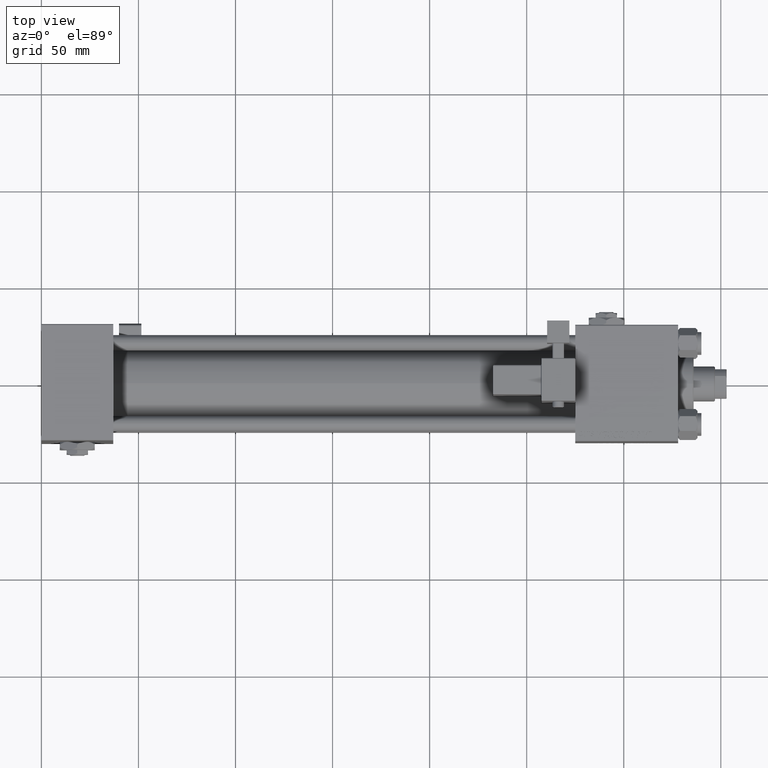
[diagram: clean part render]
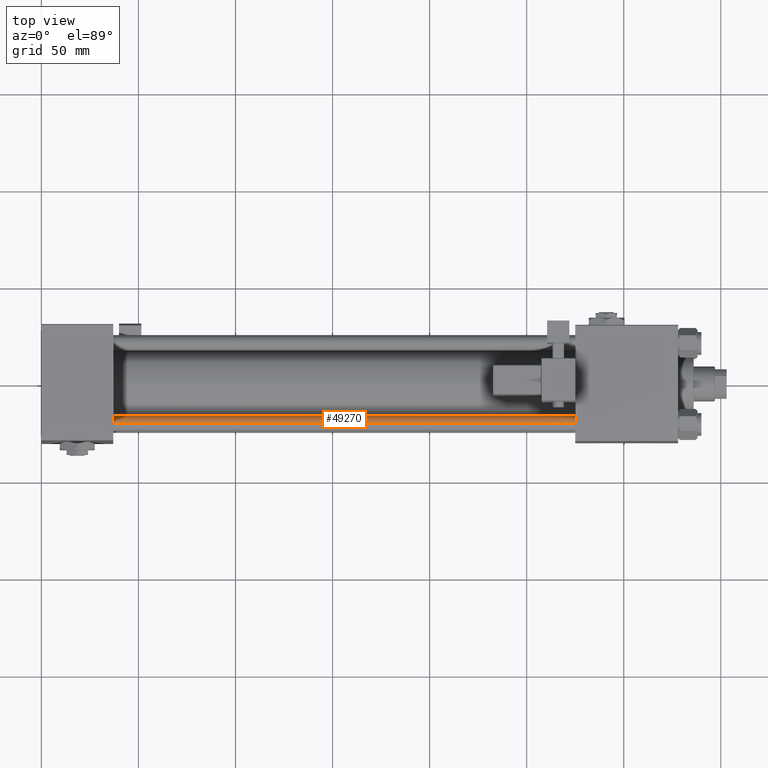
[diagram: same view with one face highlighted and labeled with its STEP entity id]
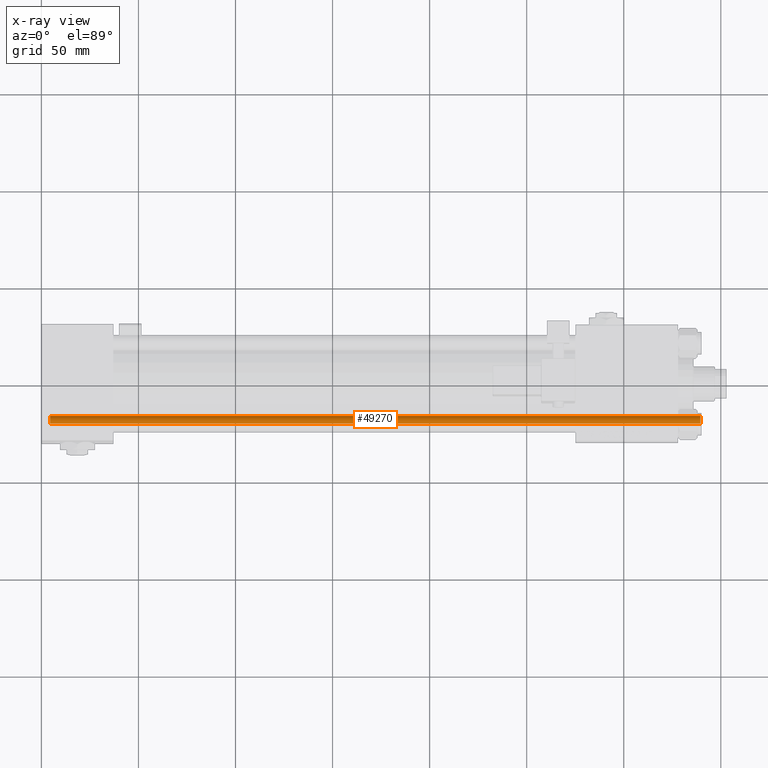
[diagram: x-ray of the same camera — body ghosted, the highlighted face saturated]
A machine part, top view. The second image highlights one B-rep face of the part: STEP entity #49270.
The next image is the same camera in x-ray: the body ghosted, the highlighted face saturated — about 0% of this face is hidden behind the body in this view.
In plain terms, the highlighted cylindrical surface (edge-blend (fillet) strip) has radius 4 mm, axis along (-1, 0, -0).
Its self-contained STEP definition (entity closure, byte-faithful):
#2832 = DIRECTION ( 'NONE',  ( 1.000000000000000000, 0.000000000000000000, 0.000000000000000000 ) ) ;
#4340 = EDGE_CURVE ( 'NONE', #36405, #35872, #12436, .T. ) ;
#4458 = CARTESIAN_POINT ( 'NONE',  ( 4.000000000000000000, 4.898587196589411843E-16, 0.5000000000003335110 ) ) ;
#4763 = DIRECTION ( 'NONE',  ( -0.000000000000000000, -0.000000000000000000, -1.000000000000000000 ) ) ;
#5082 = LINE ( 'NONE', #25329, #27484 ) ;
#7731 = CARTESIAN_POINT ( 'NONE',  ( 0.000000000000000000, 0.000000000000000000, 335.5000000000001705 ) ) ;
#8058 = EDGE_CURVE ( 'NONE', #18956, #29649, #5082, .T. ) ;
#8741 = AXIS2_PLACEMENT_3D ( 'NONE', #39191, #42994, #34573 ) ;
#9114 = CARTESIAN_POINT ( 'NONE',  ( -4.000000000000000000, 0.000000000000000000, 336.0000000000000000 ) ) ;
#9689 = CARTESIAN_POINT ( 'NONE',  ( -4.000000000000000000, 0.000000000000000000, 0.5000000000003335110 ) ) ;
#10653 = ORIENTED_EDGE ( 'NONE', *, *, #8058, .T. ) ;
#10910 = CARTESIAN_POINT ( 'NONE',  ( -4.000000000000000000, 0.000000000000000000, 335.5000000000001705 ) ) ;
#12060 = DIRECTION ( 'NONE',  ( 1.000000000000000000, 0.000000000000000000, 0.000000000000000000 ) ) ;
#12436 = LINE ( 'NONE', #9114, #23188 ) ;
#12790 = CIRCLE ( 'NONE', #50280, 4.000000000000000000 ) ;
#15166 = EDGE_CURVE ( 'NONE', #36405, #18956, #12790, .T. ) ;
#16594 = DIRECTION ( 'NONE',  ( -0.000000000000000000, -0.000000000000000000, -1.000000000000000000 ) ) ;
#17865 = ORIENTED_EDGE ( 'NONE', *, *, #4340, .F. ) ;
#18956 = VERTEX_POINT ( 'NONE', #46570 ) ;
#19785 = ORIENTED_EDGE ( 'NONE', *, *, #15166, .T. ) ;
#23188 = VECTOR ( 'NONE', #4763, 1000.000000000000000 ) ;
#25329 = CARTESIAN_POINT ( 'NONE',  ( 4.000000000000000000, 4.898587196589411843E-16, 336.0000000000000000 ) ) ;
#25732 = EDGE_LOOP ( 'NONE', ( #19785, #10653, #50786, #17865 ) ) ;
#26353 = CYLINDRICAL_SURFACE ( 'NONE', #8741, 4.000000000000000000 ) ;
#27484 = VECTOR ( 'NONE', #16594, 1000.000000000000000 ) ;
#28779 = DIRECTION ( 'NONE',  ( 0.000000000000000000, 0.000000000000000000, -1.000000000000000000 ) ) ;
#29649 = VERTEX_POINT ( 'NONE', #4458 ) ;
#34573 = DIRECTION ( 'NONE',  ( -1.000000000000000000, 0.000000000000000000, 0.000000000000000000 ) ) ;
#35872 = VERTEX_POINT ( 'NONE', #9689 ) ;
#36405 = VERTEX_POINT ( 'NONE', #10910 ) ;
#39191 = CARTESIAN_POINT ( 'NONE',  ( 0.000000000000000000, 0.000000000000000000, 336.0000000000000000 ) ) ;
#40054 = CIRCLE ( 'NONE', #53935, 4.000000000000000000 ) ;
#42994 = DIRECTION ( 'NONE',  ( -0.000000000000000000, -0.000000000000000000, -1.000000000000000000 ) ) ;
#43070 = EDGE_CURVE ( 'NONE', #29649, #35872, #40054, .T. ) ;
#46570 = CARTESIAN_POINT ( 'NONE',  ( 4.000000000000000000, 4.898587196589411843E-16, 335.5000000000001705 ) ) ;
#47088 = FACE_OUTER_BOUND ( 'NONE', #25732, .T. ) ;
#49270 = ADVANCED_FACE ( 'NONE', ( #47088 ), #26353, .T. ) ;
#49464 = DIRECTION ( 'NONE',  ( -0.000000000000000000, -0.000000000000000000, 1.000000000000000000 ) ) ;
#50280 = AXIS2_PLACEMENT_3D ( 'NONE', #7731, #28779, #2832 ) ;
#50786 = ORIENTED_EDGE ( 'NONE', *, *, #43070, .T. ) ;
#53553 = CARTESIAN_POINT ( 'NONE',  ( 0.000000000000000000, 0.000000000000000000, 0.5000000000003335110 ) ) ;
#53935 = AXIS2_PLACEMENT_3D ( 'NONE', #53553, #49464, #12060 ) ;